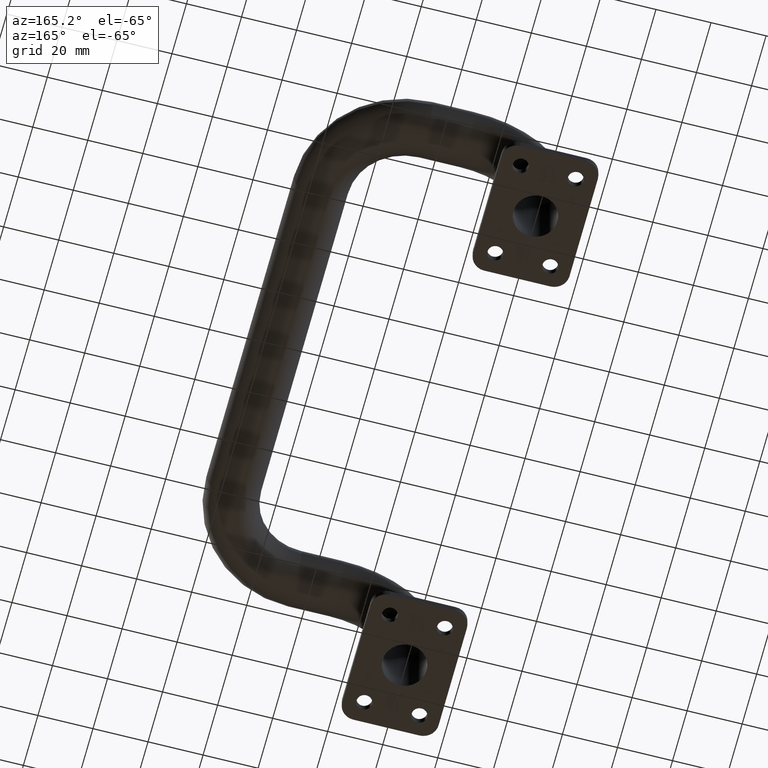
[diagram: clean part render]
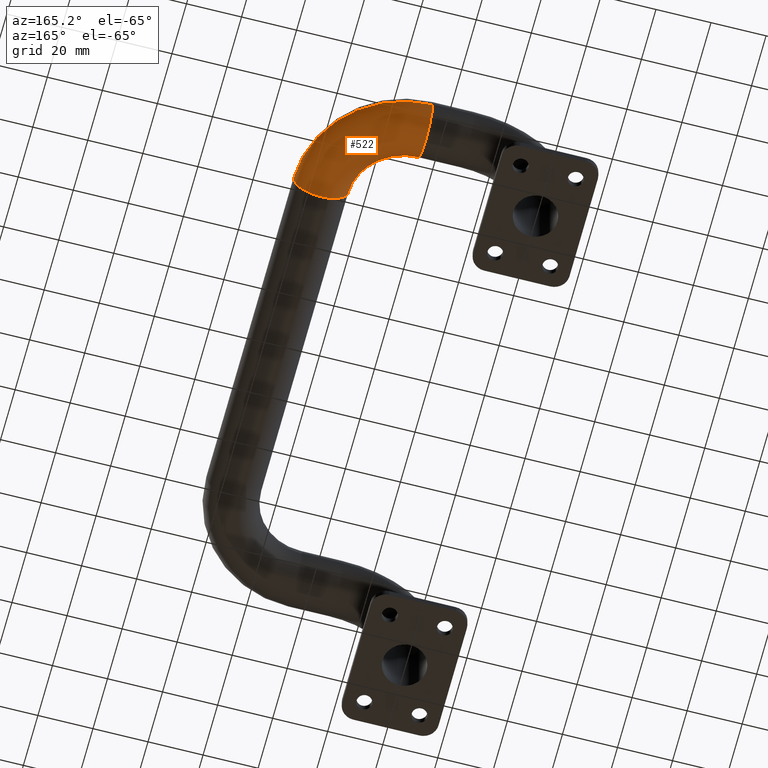
[diagram: same view with one face highlighted and labeled with its STEP entity id]
A machine part, auxiliary view. The second image highlights one B-rep face of the part: STEP entity #522.
In plain terms, the highlighted toroidal blend (fillet) surface has major radius 30 mm and minor (blend) radius 10 mm.
Its self-contained STEP definition (entity closure, byte-faithful):
#103 = VERTEX_POINT ( 'NONE', #2529 ) ;
#140 = AXIS2_PLACEMENT_3D ( 'NONE', #8233, #5060, #4292 ) ;
#169 = CIRCLE ( 'NONE', #3594, 19.99999999999999645 ) ;
#522 = ADVANCED_FACE ( 'NONE', ( #5234 ), #6895, .T. ) ;
#540 = AXIS2_PLACEMENT_3D ( 'NONE', #5238, #1436, #2920 ) ;
#639 = ORIENTED_EDGE ( 'NONE', *, *, #5996, .T. ) ;
#724 = CARTESIAN_POINT ( 'NONE',  ( 70.00000000000000000, 60.00000000000000000, 40.00000000000000000 ) ) ;
#751 = CARTESIAN_POINT ( 'NONE',  ( 40.00000000000000711, 90.00000000000000000, 50.00000000000000000 ) ) ;
#772 = CARTESIAN_POINT ( 'NONE',  ( 40.00000000000000711, 60.00000000000000000, 50.00000000000000000 ) ) ;
#789 = CARTESIAN_POINT ( 'NONE',  ( 40.00000000000000711, 60.00000000000000000, 50.00000000000000000 ) ) ;
#1363 = CIRCLE ( 'NONE', #140, 10.00000000000000178 ) ;
#1436 = DIRECTION ( 'NONE',  ( -0.000000000000000000, -0.000000000000000000, -1.000000000000000000 ) ) ;
#1483 = VERTEX_POINT ( 'NONE', #3958 ) ;
#2170 = DIRECTION ( 'NONE',  ( 1.000000000000000000, 0.000000000000000000, 6.938893903907228378E-17 ) ) ;
#2239 = VERTEX_POINT ( 'NONE', #724 ) ;
#2314 = DIRECTION ( 'NONE',  ( -0.000000000000000000, -0.000000000000000000, -1.000000000000000000 ) ) ;
#2331 = VERTEX_POINT ( 'NONE', #7732 ) ;
#2400 = ORIENTED_EDGE ( 'NONE', *, *, #3925, .F. ) ;
#2428 = AXIS2_PLACEMENT_3D ( 'NONE', #751, #2170, #8415 ) ;
#2529 = CARTESIAN_POINT ( 'NONE',  ( 80.00000000000001421, 60.00000000000000000, 50.00000000000000000 ) ) ;
#2749 = EDGE_LOOP ( 'NONE', ( #2870, #639, #5580, #2400, #5911, #4564 ) ) ;
#2813 = EDGE_CURVE ( 'NONE', #9042, #1483, #7059, .T. ) ;
#2870 = ORIENTED_EDGE ( 'NONE', *, *, #2813, .T. ) ;
#2920 = DIRECTION ( 'NONE',  ( -1.000000000000000000, 0.000000000000000000, 0.000000000000000000 ) ) ;
#3115 = DIRECTION ( 'NONE',  ( -1.000000000000000000, 0.000000000000000000, 0.000000000000000000 ) ) ;
#3594 = AXIS2_PLACEMENT_3D ( 'NONE', #789, #7690, #3115 ) ;
#3925 = EDGE_CURVE ( 'NONE', #2331, #2239, #7534, .T. ) ;
#3958 = CARTESIAN_POINT ( 'NONE',  ( 40.00000000000000711, 100.0000000000000000, 50.00000000000000000 ) ) ;
#4264 = CARTESIAN_POINT ( 'NONE',  ( 70.00000000000000000, 60.00000000000000000, 50.00000000000000000 ) ) ;
#4292 = DIRECTION ( 'NONE',  ( 0.000000000000000000, 0.000000000000000000, -1.000000000000000000 ) ) ;
#4564 = ORIENTED_EDGE ( 'NONE', *, *, #9724, .T. ) ;
#4962 = DIRECTION ( 'NONE',  ( 0.000000000000000000, -1.000000000000000000, 6.938893903907228378E-17 ) ) ;
#5027 = DIRECTION ( 'NONE',  ( 0.000000000000000000, 0.000000000000000000, -1.000000000000000000 ) ) ;
#5060 = DIRECTION ( 'NONE',  ( 1.000000000000000000, 0.000000000000000000, 6.938893903907228378E-17 ) ) ;
#5198 = CIRCLE ( 'NONE', #8043, 10.00000000000000178 ) ;
#5234 = FACE_OUTER_BOUND ( 'NONE', #2749, .T. ) ;
#5238 = CARTESIAN_POINT ( 'NONE',  ( 40.00000000000000711, 60.00000000000000000, 50.00000000000000000 ) ) ;
#5580 = ORIENTED_EDGE ( 'NONE', *, *, #9611, .F. ) ;
#5911 = ORIENTED_EDGE ( 'NONE', *, *, #7136, .F. ) ;
#5996 = EDGE_CURVE ( 'NONE', #1483, #103, #8828, .T. ) ;
#6735 = AXIS2_PLACEMENT_3D ( 'NONE', #772, #2314, #8499 ) ;
#6895 = TOROIDAL_SURFACE ( 'NONE', #540, 30.00000000000000000, 10.00000000000000000 ) ;
#7059 = CIRCLE ( 'NONE', #2428, 10.00000000000000178 ) ;
#7136 = EDGE_CURVE ( 'NONE', #8131, #2331, #169, .T. ) ;
#7259 = CARTESIAN_POINT ( 'NONE',  ( 40.00000000000000711, 80.00000000000000000, 50.00000000000000000 ) ) ;
#7432 = CARTESIAN_POINT ( 'NONE',  ( 70.00000000000000000, 60.00000000000000000, 50.00000000000000000 ) ) ;
#7534 = CIRCLE ( 'NONE', #7689, 10.00000000000000178 ) ;
#7584 = CARTESIAN_POINT ( 'NONE',  ( 40.00000000000000711, 90.00000000000000000, 40.00000000000000000 ) ) ;
#7689 = AXIS2_PLACEMENT_3D ( 'NONE', #7432, #8201, #9770 ) ;
#7690 = DIRECTION ( 'NONE',  ( -0.000000000000000000, -0.000000000000000000, -1.000000000000000000 ) ) ;
#7732 = CARTESIAN_POINT ( 'NONE',  ( 60.00000000000000711, 60.00000000000000000, 50.00000000000000000 ) ) ;
#8043 = AXIS2_PLACEMENT_3D ( 'NONE', #4264, #4962, #5027 ) ;
#8131 = VERTEX_POINT ( 'NONE', #7259 ) ;
#8201 = DIRECTION ( 'NONE',  ( 0.000000000000000000, -1.000000000000000000, 6.938893903907228378E-17 ) ) ;
#8233 = CARTESIAN_POINT ( 'NONE',  ( 40.00000000000000711, 90.00000000000000000, 50.00000000000000000 ) ) ;
#8415 = DIRECTION ( 'NONE',  ( 0.000000000000000000, 0.000000000000000000, -1.000000000000000000 ) ) ;
#8499 = DIRECTION ( 'NONE',  ( -1.000000000000000000, 0.000000000000000000, 0.000000000000000000 ) ) ;
#8828 = CIRCLE ( 'NONE', #6735, 40.00000000000000000 ) ;
#9042 = VERTEX_POINT ( 'NONE', #7584 ) ;
#9611 = EDGE_CURVE ( 'NONE', #2239, #103, #5198, .T. ) ;
#9724 = EDGE_CURVE ( 'NONE', #8131, #9042, #1363, .T. ) ;
#9770 = DIRECTION ( 'NONE',  ( 0.000000000000000000, 0.000000000000000000, -1.000000000000000000 ) ) ;